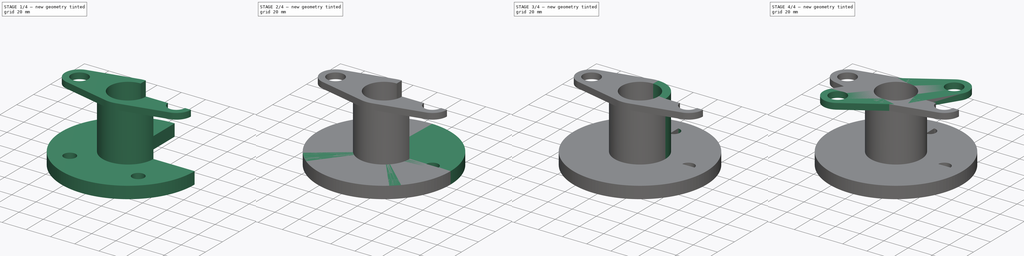
[diagram: build sequence overview — one tinted view per stage of 4, left to right]
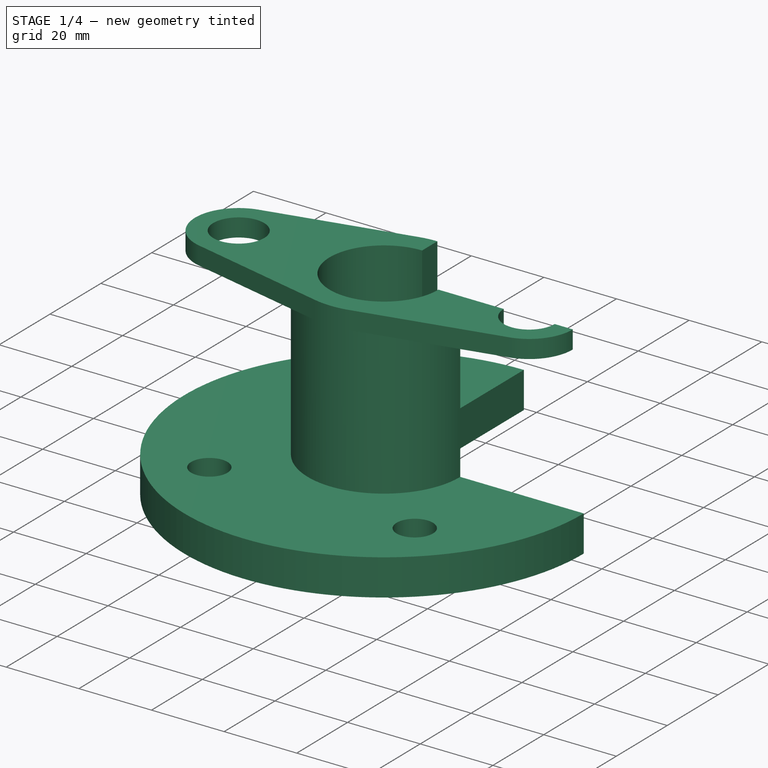
[diagram: stage 1 of 4 — iso view after this stage's code; geometry added in this stage tinted green]
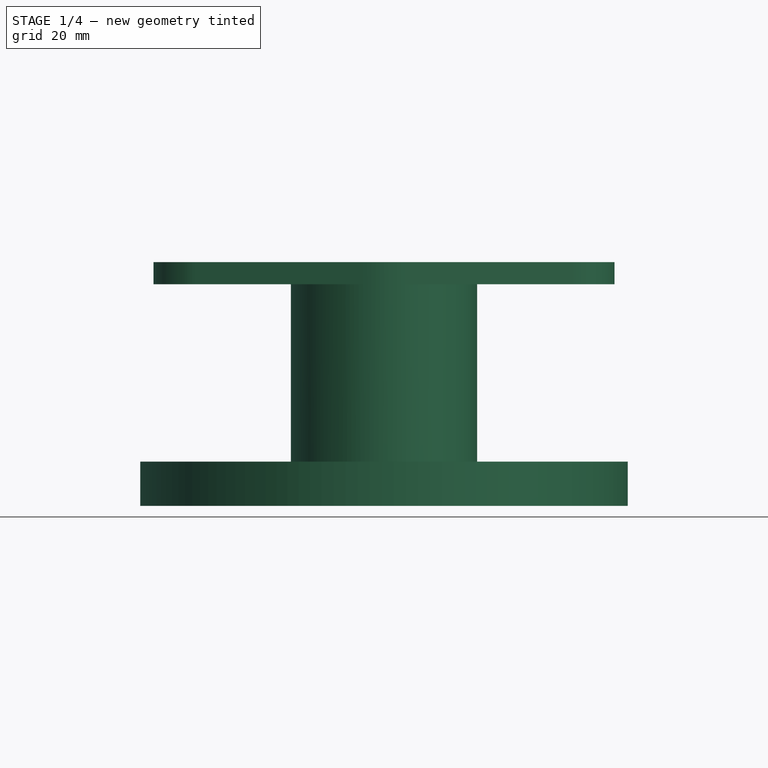
[diagram: stage 1 of 4 — front view after this stage's code; geometry added in this stage tinted green]
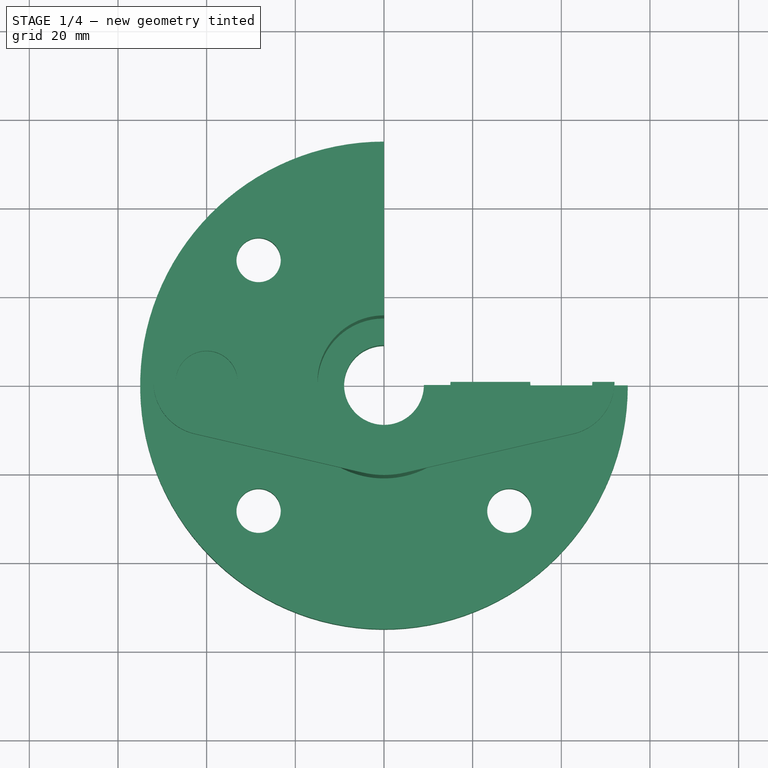
[diagram: stage 1 of 4 — top view after this stage's code; geometry added in this stage tinted green]
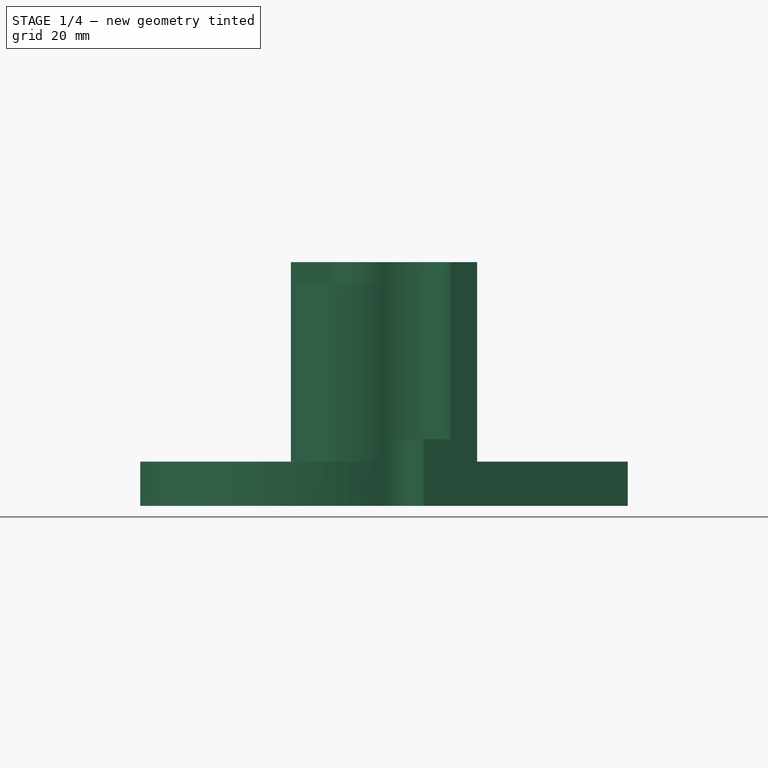
[diagram: stage 1 of 4 — right view after this stage's code; geometry added in this stage tinted green]
FCSTD DOCUMENT  (FreeCAD 0.16R)
Label: Fig 4.19 Final
License: All rights reserved
LicenseURL: http://en.wikipedia.org/wiki/All_rights_reserved
objects: Sketcher::SketchObject×7, PartDesign::Pad×4, PartDesign::Pocket×3, PartDesign::PolarPattern×1, Part::Feature×1, Part::Cut×1
note: 24 computed .brp shape members not serialized (recipe doc carries the construction recipe); baked Part::Feature solids carry a one-line shape summary decoded from their .brp

FEATURE [Part::Feature] Pad002001  label="Pad003"
  Placement = pos=(0,0,0) rot=(0,0,-1;0.785398rad)
  shape: bbox 110 x 110 x 55 mm, 22 faces (baked)
FEATURE [Sketcher::SketchObject] Sketch006
  sketch-geometry (4):
    g0: LineSegment StartX=0 StartY=64.3828 StartZ=0 EndX=82.9935 EndY=64.3828 EndZ=0
    g1: LineSegment StartX=82.9935 StartY=64.3828 StartZ=0 EndX=82.9935 EndY=0 EndZ=0
    g2: LineSegment StartX=82.9935 StartY=0 StartZ=0 EndX=0 EndY=0 EndZ=0
    g3: LineSegment StartX=0 StartY=0 StartZ=0 EndX=0 EndY=64.3828 EndZ=0
  constraints (10):
    c: Coincident(g0,g1)
    c: Coincident(g1,g2)
    c: Coincident(g2,g3)
    c: Coincident(g3,g0)
    c: Horizontal(g0)
    c: Horizontal(g2)
    c: Vertical(g1)
    c: Vertical(g3)
    c: PointOnObject(g0,g-2)
    c: PointOnObject(g1,g-1)
FEATURE [PartDesign::Pad] Pad002002
  Length = 65
  Length2 = 100
  Sketch = -> Sketch006
  Type = 0
FEATURE [Part::Cut] Cut
  Base = -> Pad002001
  Tool = -> Pad002002
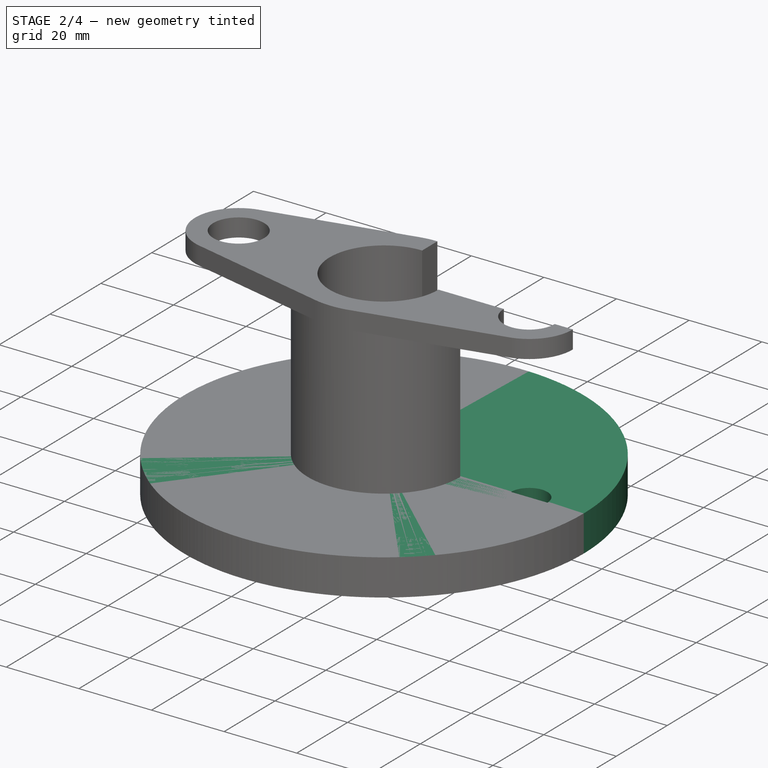
[diagram: stage 2 of 4 — iso view after this stage's code; geometry added in this stage tinted green]
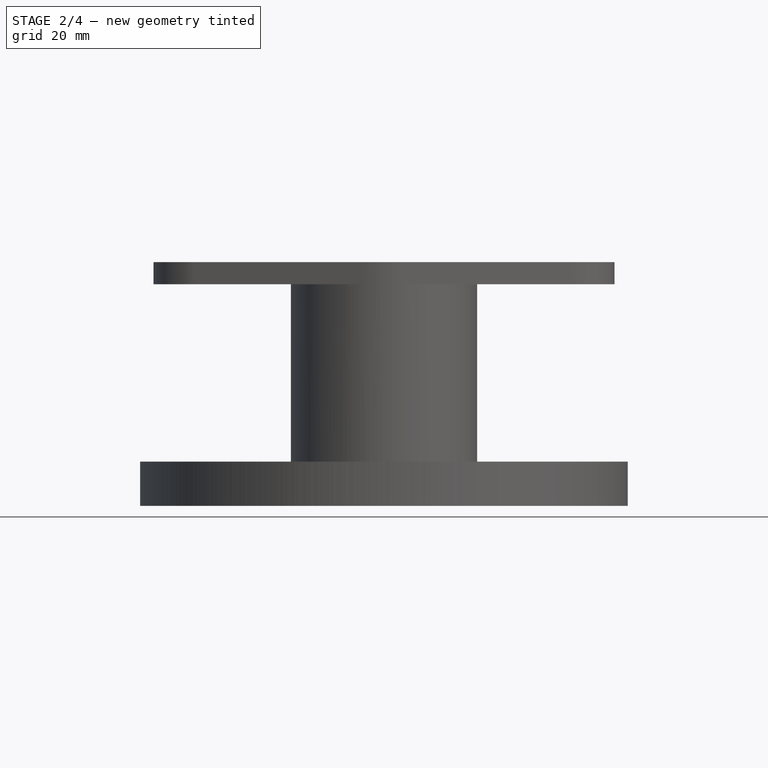
[diagram: stage 2 of 4 — front view after this stage's code; geometry added in this stage tinted green]
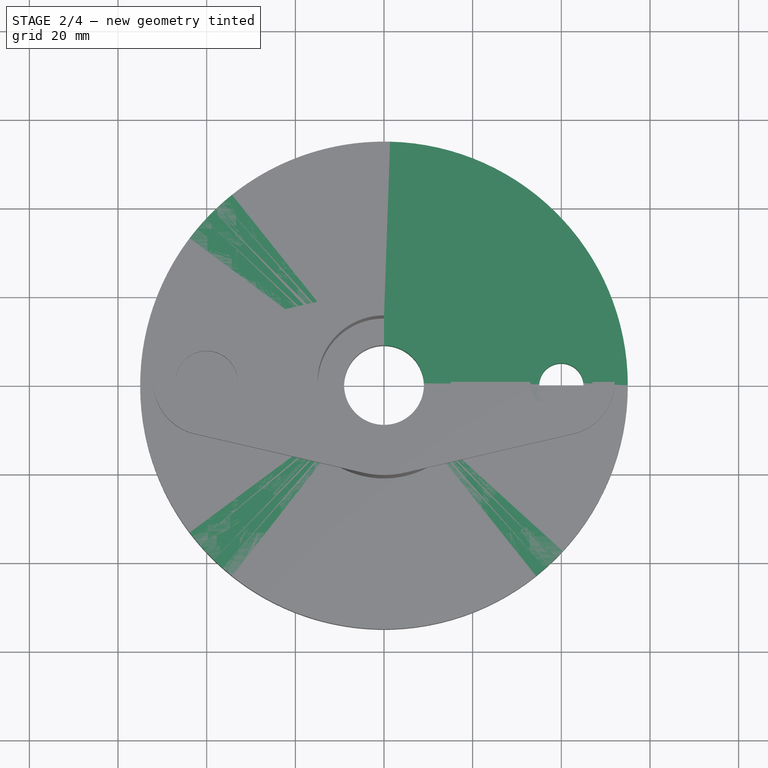
[diagram: stage 2 of 4 — top view after this stage's code; geometry added in this stage tinted green]
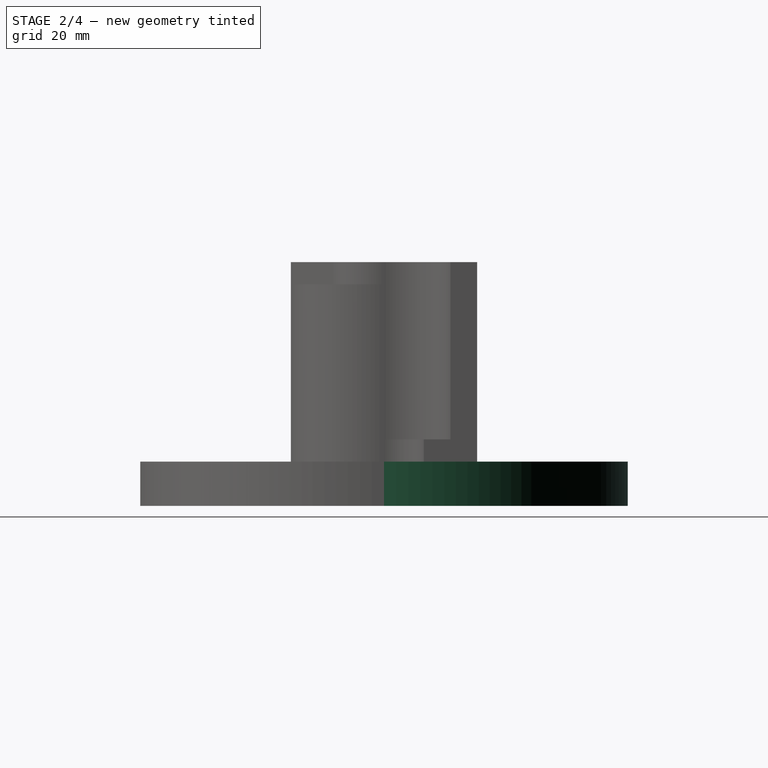
[diagram: stage 2 of 4 — right view after this stage's code; geometry added in this stage tinted green]
FEATURE [Sketcher::SketchObject] Sketch
  sketch-geometry (2):
    g0: Circle CenterX=0 CenterY=0 CenterZ=0 NormalX=0 NormalY=0 NormalZ=1 Radius=55
    g1: Circle CenterX=0 CenterY=0 CenterZ=0 NormalX=0 NormalY=0 NormalZ=1 Radius=9
  constraints (4):
    c: Coincident(g0,g-1)
    c: Radius(g0) = 55
    c: Coincident(g1,g-1)
    c: Radius(g1) = 9
FEATURE [PartDesign::Pad] Pad
  Length = 10
  Length2 = 100
  Sketch = -> Sketch
  Type = 0
FEATURE [Sketcher::SketchObject] Sketch001
  ExternalGeometry = -> [Pad]
  Placement = pos=(0,0,10) rot=(0,0,1;0rad)
  Support = -> Pad [Face4]
  sketch-geometry (1):
    g0: Circle CenterX=40 CenterY=0 CenterZ=0 NormalX=0 NormalY=0 NormalZ=1 Radius=5
  constraints (3):
    c: PointOnObject(g0,g-1)
    c: Radius(g0) = 5
    c: DistanceX(g-1,g0) = 40
FEATURE [PartDesign::Pocket] Pocket
  Length = 5
  Sketch = -> Sketch001
  Type = 1
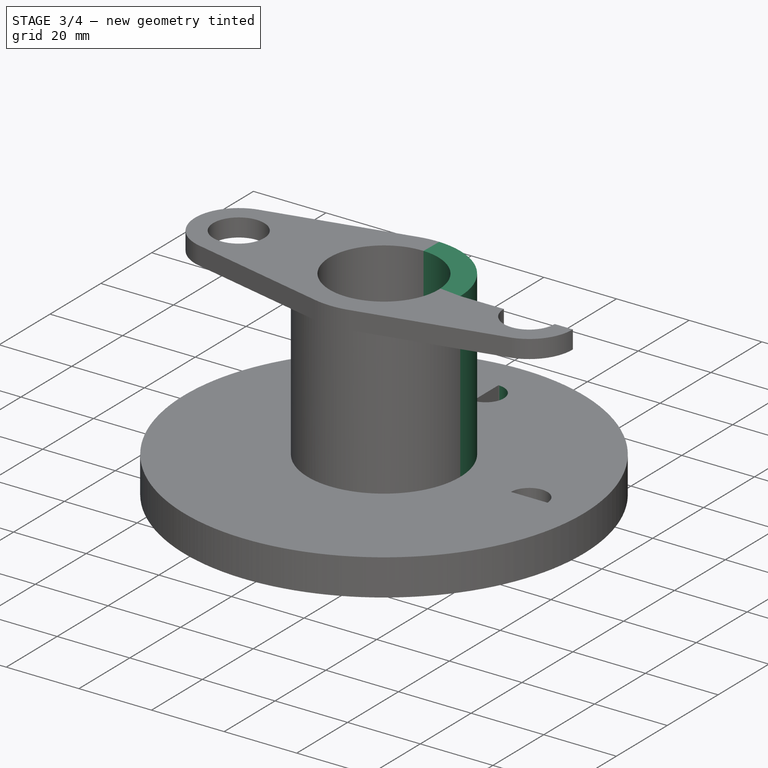
[diagram: stage 3 of 4 — iso view after this stage's code; geometry added in this stage tinted green]
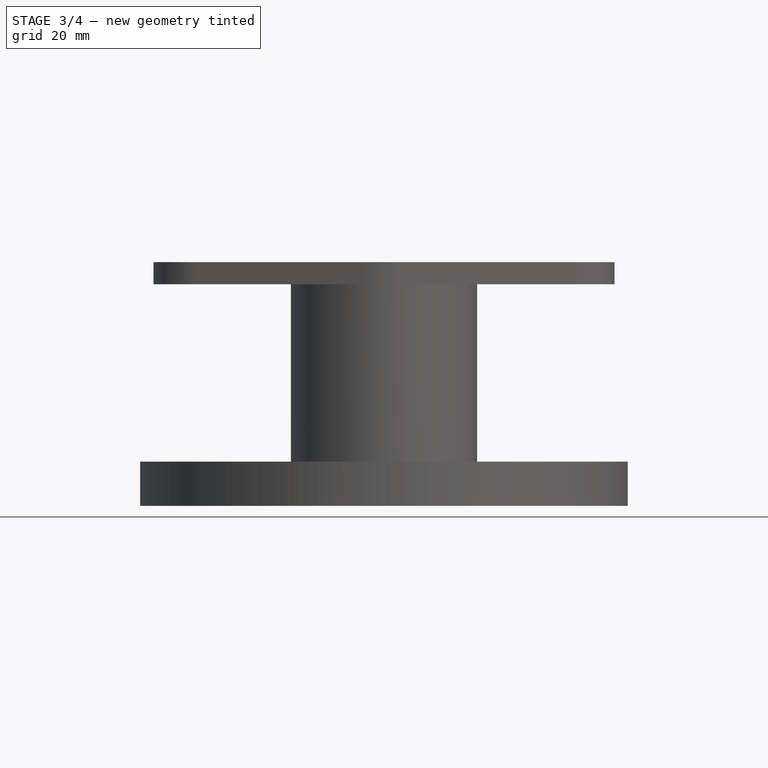
[diagram: stage 3 of 4 — front view after this stage's code; geometry added in this stage tinted green]
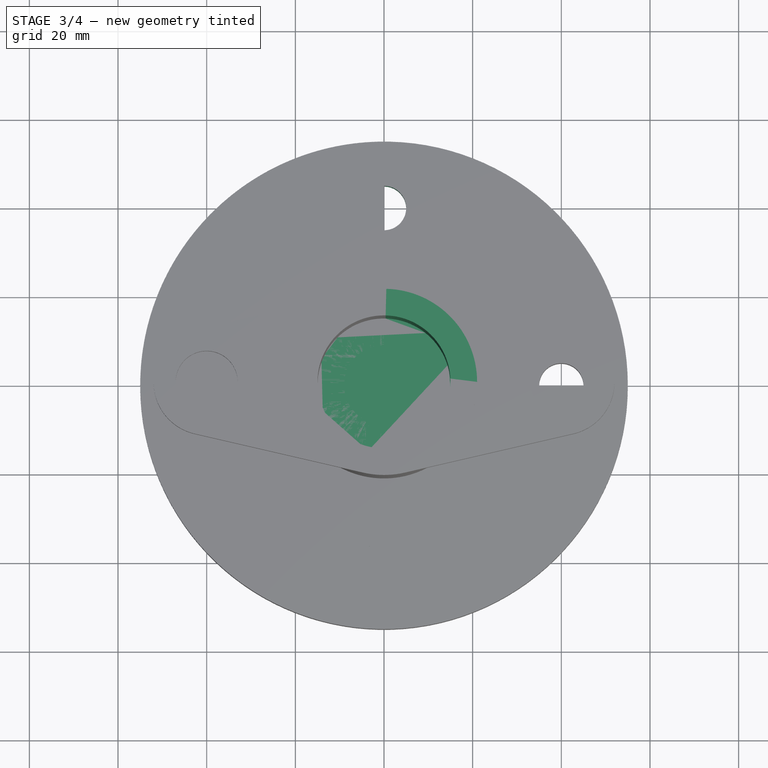
[diagram: stage 3 of 4 — top view after this stage's code; geometry added in this stage tinted green]
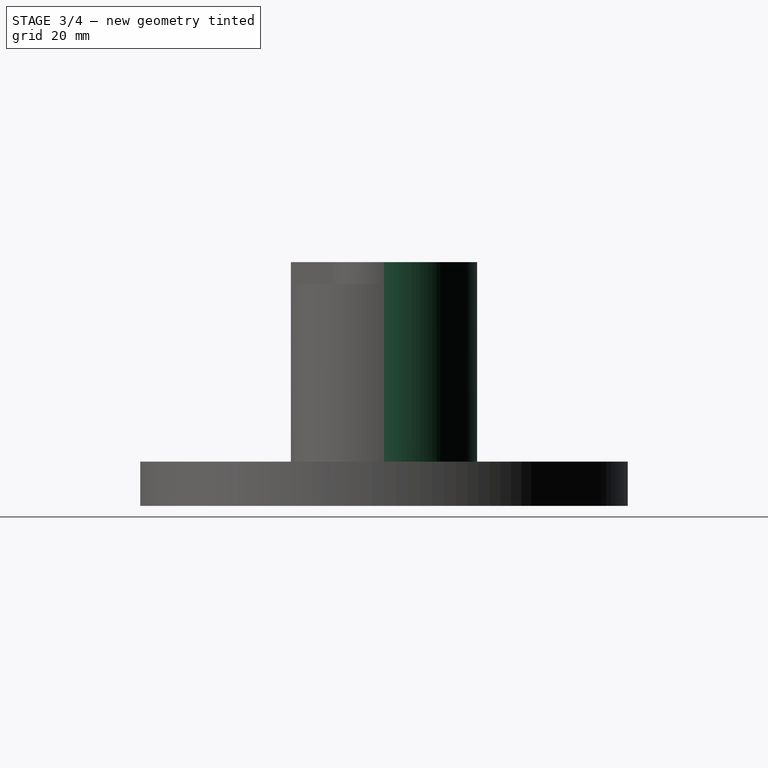
[diagram: stage 3 of 4 — right view after this stage's code; geometry added in this stage tinted green]
FEATURE [PartDesign::PolarPattern] PolarPattern
  Angle = 360
  Axis = -> Sketch001 [N_Axis]
  Occurrences = 4
  Originals = -> [Pocket]
FEATURE [Sketcher::SketchObject] Sketch002
  Placement = pos=(0,0,10) rot=(0,0,1;0rad)
  Support = -> PolarPattern [Face3]
  sketch-geometry (1):
    g0: Circle CenterX=0 CenterY=0 CenterZ=0 NormalX=0 NormalY=0 NormalZ=1 Radius=21
  constraints (2):
    c: Radius(g0) = 21
    c: Coincident(g0,g-1)
FEATURE [PartDesign::Pad] Pad001
  Length = 45
  Length2 = 100
  Sketch = -> Sketch002
  Type = 0
FEATURE [Sketcher::SketchObject] Sketch003
  Placement = pos=(0,0,55) rot=(0,0,1;0rad)
  Support = -> Pad001 [Face1]
  sketch-geometry (1):
    g0: Circle CenterX=0 CenterY=0 CenterZ=0 NormalX=0 NormalY=0 NormalZ=1 Radius=15
  constraints (2):
    c: Coincident(g0,g-1)
    c: Radius(g0) = 15
FEATURE [PartDesign::Pocket] Pocket001
  Length = 40
  Sketch = -> Sketch003
  Type = 0
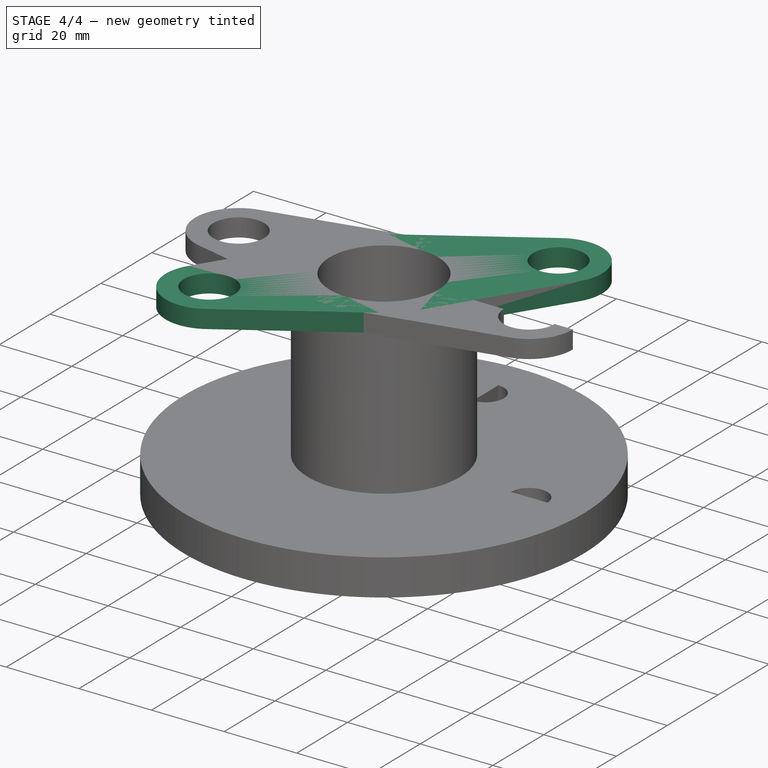
[diagram: stage 4 of 4 — iso view after this stage's code; geometry added in this stage tinted green]
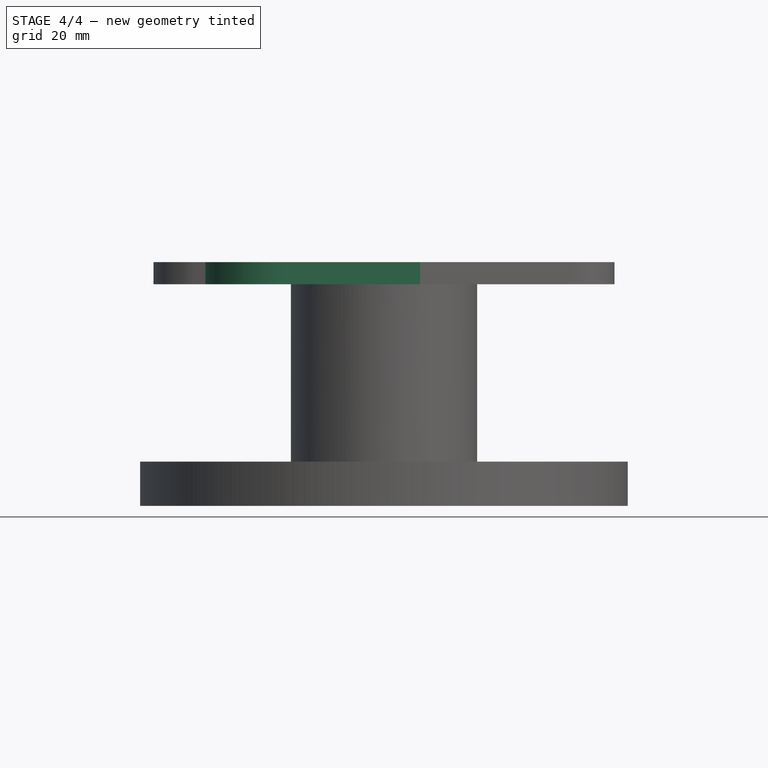
[diagram: stage 4 of 4 — front view after this stage's code; geometry added in this stage tinted green]
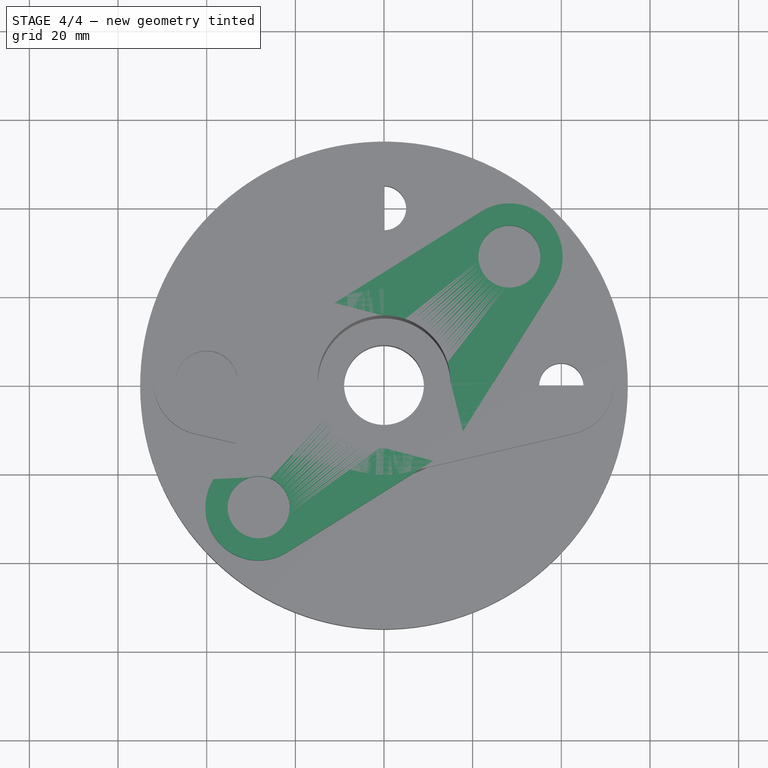
[diagram: stage 4 of 4 — top view after this stage's code; geometry added in this stage tinted green]
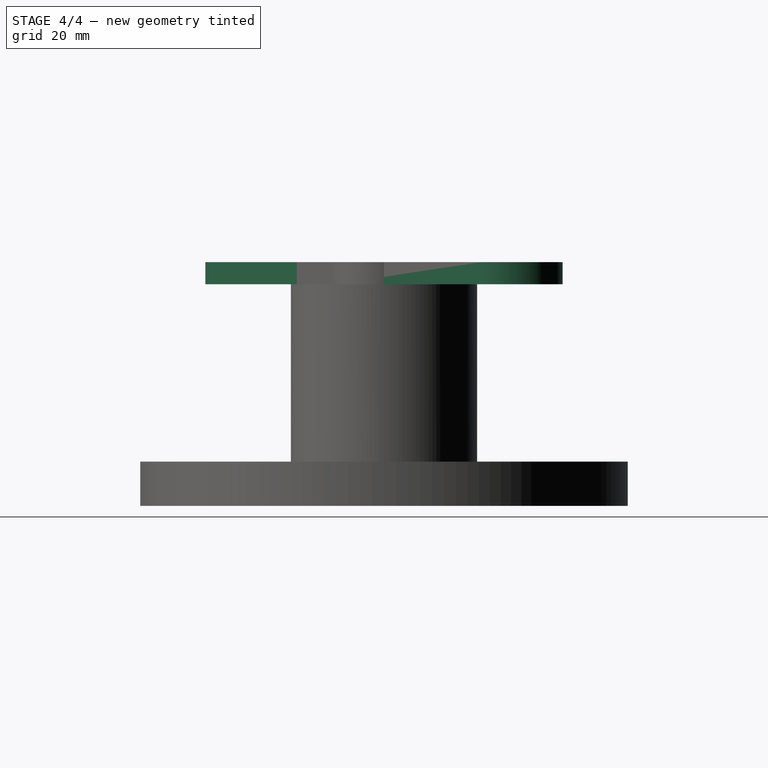
[diagram: stage 4 of 4 — right view after this stage's code; geometry added in this stage tinted green]
FEATURE [Sketcher::SketchObject] Sketch004
  Placement = pos=(0,0,15) rot=(0,0,1;0rad)
  Support = -> Pocket001 [Face5]
  sketch-geometry (1):
    g0: Circle CenterX=0 CenterY=0 CenterZ=0 NormalX=0 NormalY=0 NormalZ=1 Radius=9
  constraints (2):
    c: Coincident(g0,g-1)
    c: Radius(g0) = 9
FEATURE [PartDesign::Pocket] Pocket002
  Length = 5
  Sketch = -> Sketch004
  Type = 0
FEATURE [Sketcher::SketchObject] Sketch005
  Placement = pos=(0,0,55) rot=(0,0,1;0rad)
  Support = -> Pocket002 [Face1]
  sketch-geometry (13):
    g0: ArcOfCircle CenterX=-28.2843 CenterY=-28.2843 CenterZ=0 NormalX=0 NormalY=0 NormalZ=1 Radius=12 StartAngle=2.58314 EndAngle=5.27085
    g1: LineSegment StartX=-38.4612 StartY=-21.9257 StartZ=0 EndX=-17.8096 EndY=11.1274 EndZ=0
    g2: LineSegment StartX=-21.9257 StartY=-38.4612 StartZ=0 EndX=11.1274 EndY=-17.8096 EndZ=0
    g3: LineSegment StartX=17.8096 StartY=-11.1274 StartZ=0 EndX=38.4612 EndY=21.9258 EndZ=0
    g4: LineSegment StartX=21.9258 StartY=38.4612 StartZ=0 EndX=-11.1274 EndY=17.8096 EndZ=0
    g5: ArcOfCircle CenterX=0 CenterY=0 CenterZ=0 NormalX=0 NormalY=0 NormalZ=1 Radius=21 StartAngle=2.12925 EndAngle=2.58314
    g6: ArcOfCircle CenterX=0 CenterY=0 CenterZ=0 NormalX=0 NormalY=0 NormalZ=1 Radius=21 StartAngle=5.27084 EndAngle=5.72473
    g7: ArcOfCircle CenterX=28.2843 CenterY=28.2843 CenterZ=0 NormalX=0 NormalY=0 NormalZ=1 Radius=12 StartAngle=5.72473 EndAngle=8.41244
    g8: Circle CenterX=-28.2843 CenterY=-28.2843 CenterZ=0 NormalX=0 NormalY=0 NormalZ=1 Radius=7
    g9: Circle CenterX=28.2843 CenterY=28.2843 CenterZ=0 NormalX=0 NormalY=0 NormalZ=1 Radius=7
    g10: LineSegment [constr] StartX=0 StartY=0 StartZ=0 EndX=51.6492 EndY=51.6492 EndZ=0
    g11: LineSegment [constr] StartX=0 StartY=0 StartZ=0 EndX=-56.3495 EndY=-56.3495 EndZ=0
    g12: Circle CenterX=0 CenterY=0 CenterZ=0 NormalX=0 NormalY=0 NormalZ=1 Radius=15
  constraints (36):
    c: Radius(g0) = 12
    c: Coincident(g5,g1)
    c: Coincident(g5,g4)
    c: Coincident(g6,g-1)
    c: Coincident(g6,g2)
    c: Coincident(g6,g3)
    c: Coincident(g5,g6)
    c: Tangent(g6,g2)
    c: Tangent(g6,g3)
    c: Tangent(g4,g5)
    c: Tangent(g5,g1)
    c: Coincident(g0,g1)
    c: Coincident(g0,g2)
    c: Coincident(g7,g4)
    c: Coincident(g3,g7)
    c: Radius(g7) = 12
    c: Tangent(g3,g7)
    c: Tangent(g7,g4)
    c: Tangent(g0,g2)
    c: Tangent(g0,g1)
    c: Radius(g5) = 21
    c: Radius(g6) = 21
    c: Coincident(g8,g0)
    c: Coincident(g9,g7)
    c: Radius(g8) = 7
    c: Radius(g9) = 7
    c: Coincident(g10,g-1)
    c: Angle(g-1,g10) = 0.785398
    c: PointOnObject(g7,g10)
    c: Coincident(g11,g-1)
    c: Angle(g-2,g11) = 2.35619
    c: PointOnObject(g0,g11)
    c: Distance(g0,g7) = 80
    c: Distance(g-1,g0) = 40
    c: Coincident(g12,g-1)
    c: Radius(g12) = 15
FEATURE [PartDesign::Pad] Pad002
  Length = 5
  Length2 = 100
  Reversed = true
  Sketch = -> Sketch005
  Type = 0
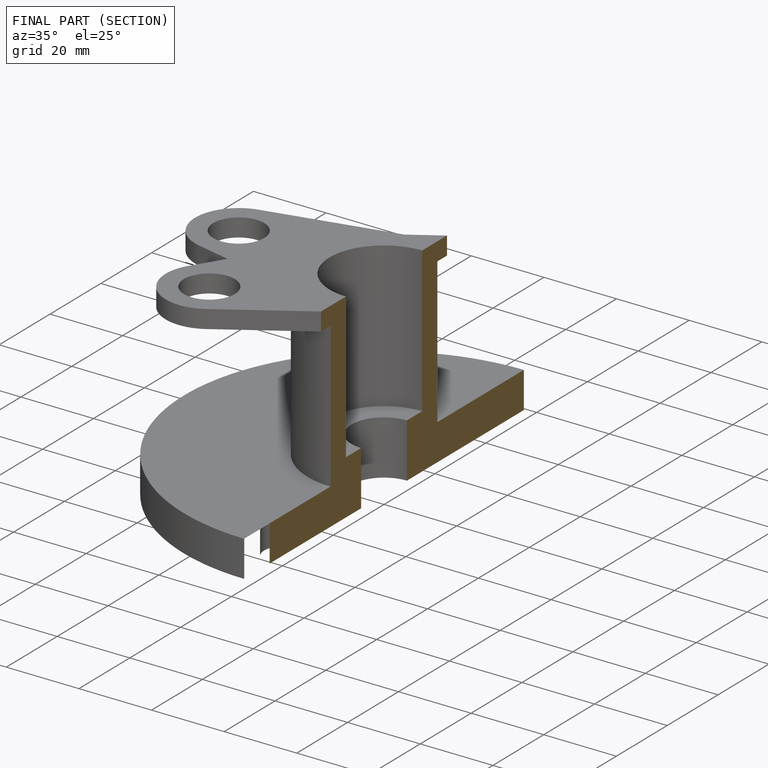
[diagram: finished part — half-section view (interior)]
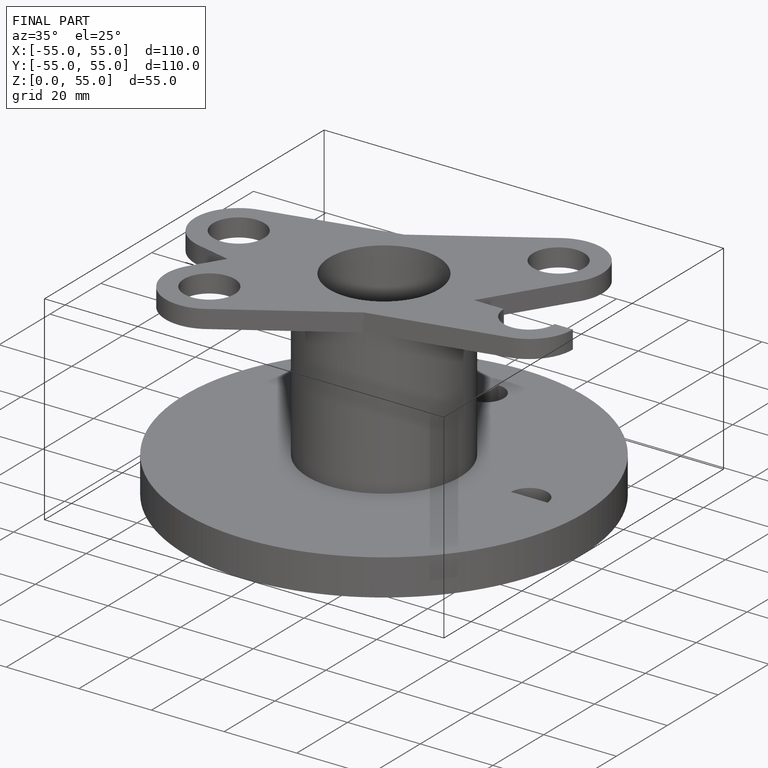
[diagram: finished part — iso view with bounding-box wireframe]
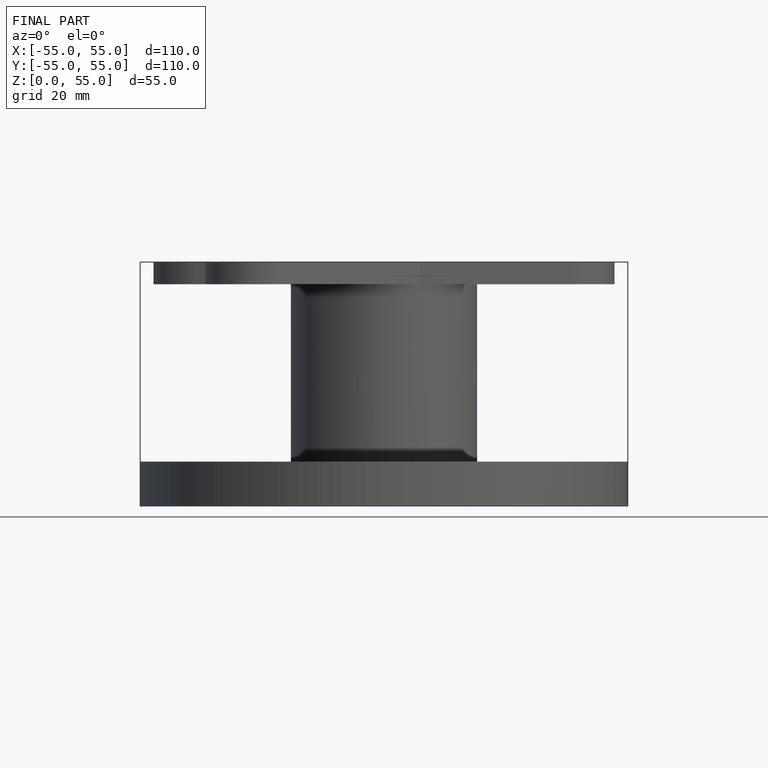
[diagram: finished part — front view with bounding-box wireframe]
